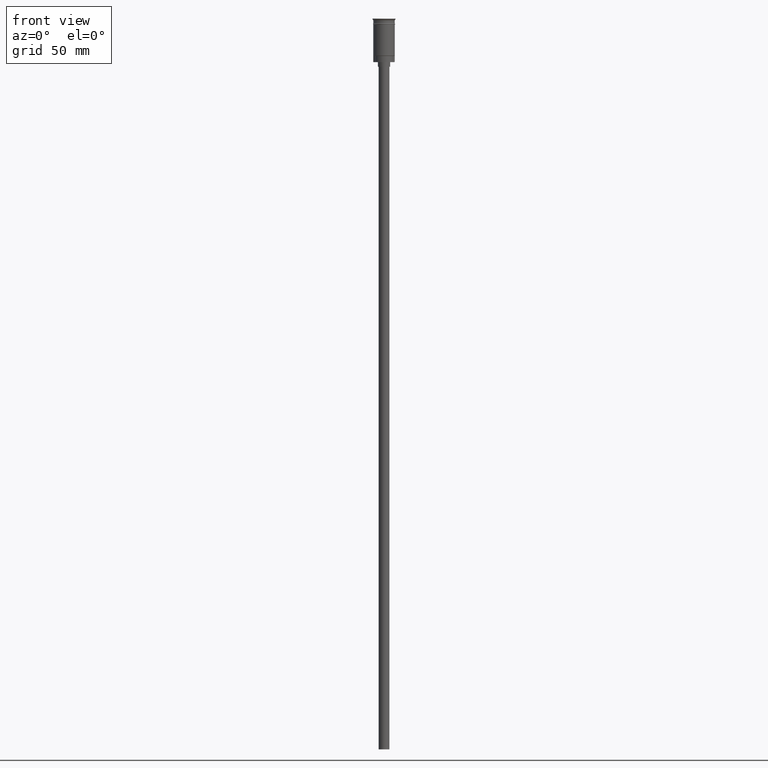
[diagram: clean part render]
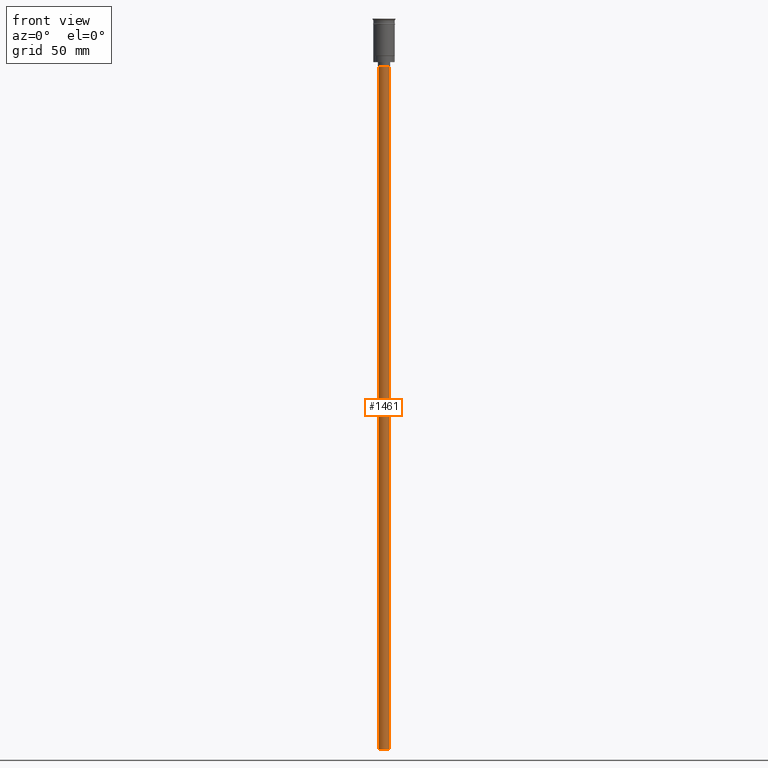
[diagram: same view with one face highlighted and labeled with its STEP entity id]
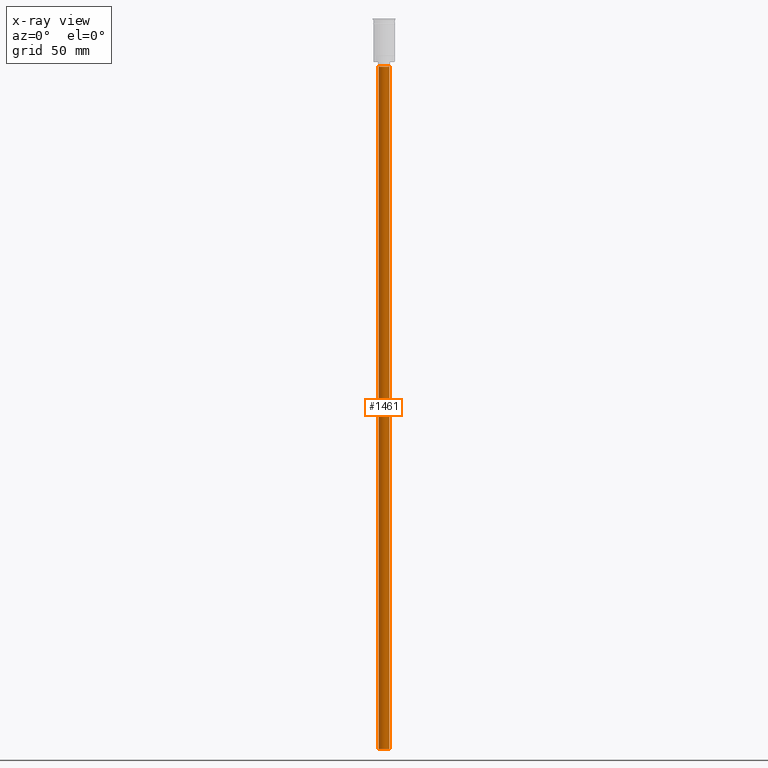
[diagram: x-ray of the same camera — body ghosted, the highlighted face saturated]
A machine part, front view. The second image highlights one B-rep face of the part: STEP entity #1461.
The next image is the same camera in x-ray: the body ghosted, the highlighted face saturated — about 0% of this face is hidden behind the body in this view.
In plain terms, the highlighted cylindrical surface (edge-blend (fillet) strip) has radius 3.5 mm, axis along (-0, -0, 1).
Its self-contained STEP definition (entity closure, byte-faithful):
#58 = DIRECTION ( 'NONE',  ( -0.000000000000000000, -0.000000000000000000, 1.000000000000000000 ) ) ;
#109 = DIRECTION ( 'NONE',  ( 1.000000000000000000, 0.000000000000000000, 0.000000000000000000 ) ) ;
#121 = CARTESIAN_POINT ( 'NONE',  ( 3.500000000000000444, 0.000000000000000000, -31.50000000000000000 ) ) ;
#157 = VERTEX_POINT ( 'NONE', #835 ) ;
#174 = EDGE_CURVE ( 'NONE', #891, #1500, #214, .T. ) ;
#214 = LINE ( 'NONE', #714, #966 ) ;
#256 = AXIS2_PLACEMENT_3D ( 'NONE', #840, #879, #848 ) ;
#341 = FACE_OUTER_BOUND ( 'NONE', #486, .T. ) ;
#380 = EDGE_CURVE ( 'NONE', #157, #579, #1182, .T. ) ;
#386 = AXIS2_PLACEMENT_3D ( 'NONE', #624, #870, #109 ) ;
#486 = EDGE_LOOP ( 'NONE', ( #688, #793, #1397, #1059 ) ) ;
#491 = CARTESIAN_POINT ( 'NONE',  ( 3.500000000000000444, 0.000000000000000000, -478.5000000000000568 ) ) ;
#579 = VERTEX_POINT ( 'NONE', #1239 ) ;
#624 = CARTESIAN_POINT ( 'NONE',  ( 0.000000000000000000, 0.000000000000000000, -478.5000000000000568 ) ) ;
#668 = CIRCLE ( 'NONE', #996, 3.500000000000000444 ) ;
#688 = ORIENTED_EDGE ( 'NONE', *, *, #380, .F. ) ;
#714 = CARTESIAN_POINT ( 'NONE',  ( 3.500000000000000444, 0.000000000000000000, -478.5000000000000568 ) ) ;
#789 = CARTESIAN_POINT ( 'NONE',  ( -3.500000000000000444, 4.286263797015737088E-16, -478.5000000000000568 ) ) ;
#793 = ORIENTED_EDGE ( 'NONE', *, *, #1509, .F. ) ;
#835 = CARTESIAN_POINT ( 'NONE',  ( -3.500000000000000444, 4.286263797015737088E-16, -478.5000000000000568 ) ) ;
#839 = DIRECTION ( 'NONE',  ( 0.000000000000000000, 0.000000000000000000, -1.000000000000000000 ) ) ;
#840 = CARTESIAN_POINT ( 'NONE',  ( 0.000000000000000000, 0.000000000000000000, -31.50000000000000000 ) ) ;
#848 = DIRECTION ( 'NONE',  ( -1.000000000000000000, 0.000000000000000000, 0.000000000000000000 ) ) ;
#870 = DIRECTION ( 'NONE',  ( -0.000000000000000000, -0.000000000000000000, 1.000000000000000000 ) ) ;
#879 = DIRECTION ( 'NONE',  ( 0.000000000000000000, 0.000000000000000000, -1.000000000000000000 ) ) ;
#891 = VERTEX_POINT ( 'NONE', #491 ) ;
#966 = VECTOR ( 'NONE', #1210, 1000.000000000000000 ) ;
#996 = AXIS2_PLACEMENT_3D ( 'NONE', #1450, #839, #1327 ) ;
#1011 = CYLINDRICAL_SURFACE ( 'NONE', #386, 3.500000000000000444 ) ;
#1059 = ORIENTED_EDGE ( 'NONE', *, *, #1232, .T. ) ;
#1182 = LINE ( 'NONE', #789, #1365 ) ;
#1210 = DIRECTION ( 'NONE',  ( -0.000000000000000000, -0.000000000000000000, 1.000000000000000000 ) ) ;
#1232 = EDGE_CURVE ( 'NONE', #1500, #579, #1576, .T. ) ;
#1239 = CARTESIAN_POINT ( 'NONE',  ( -3.500000000000000444, 4.286263797015737088E-16, -31.50000000000000000 ) ) ;
#1327 = DIRECTION ( 'NONE',  ( -1.000000000000000000, 0.000000000000000000, 0.000000000000000000 ) ) ;
#1365 = VECTOR ( 'NONE', #58, 1000.000000000000000 ) ;
#1397 = ORIENTED_EDGE ( 'NONE', *, *, #174, .T. ) ;
#1450 = CARTESIAN_POINT ( 'NONE',  ( 0.000000000000000000, 0.000000000000000000, -478.5000000000000568 ) ) ;
#1461 = ADVANCED_FACE ( 'NONE', ( #341 ), #1011, .T. ) ;
#1500 = VERTEX_POINT ( 'NONE', #121 ) ;
#1509 = EDGE_CURVE ( 'NONE', #891, #157, #668, .T. ) ;
#1576 = CIRCLE ( 'NONE', #256, 3.500000000000000444 ) ;